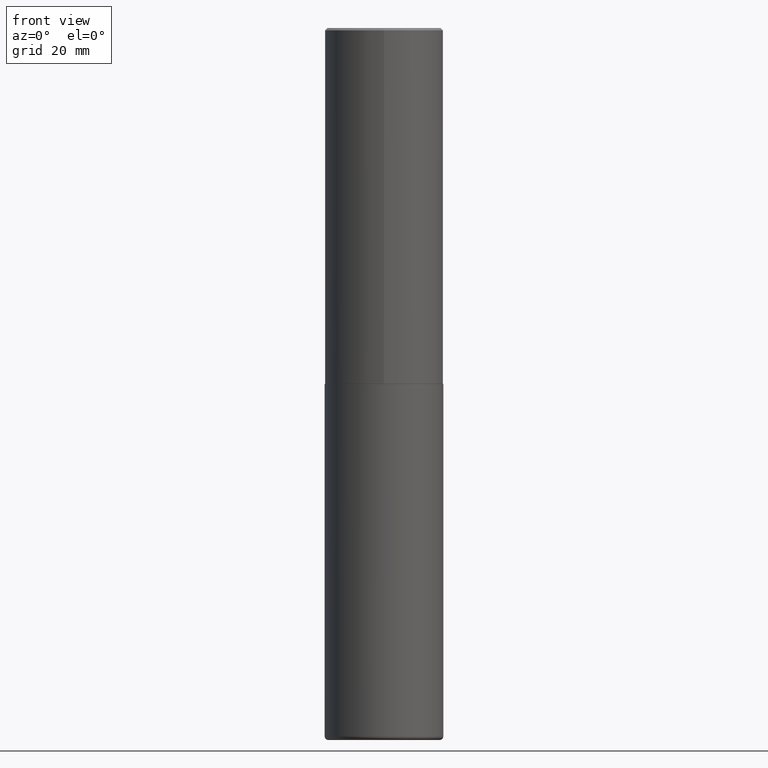
[diagram: clean part render]
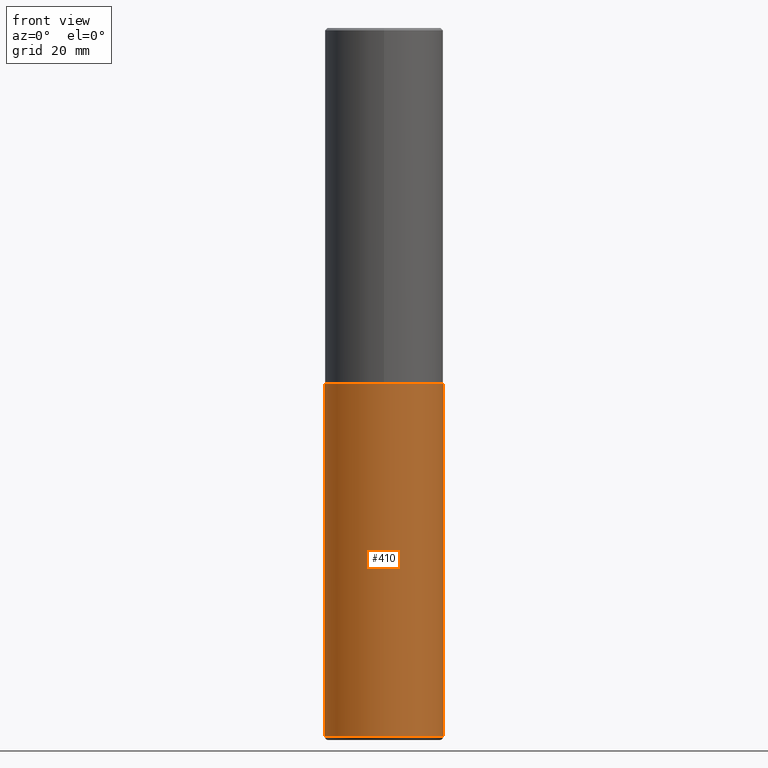
[diagram: same view with one face highlighted and labeled with its STEP entity id]
A machine part, front view. The second image highlights one B-rep face of the part: STEP entity #410.
In plain terms, the highlighted cylindrical surface (partial cylindrical patch) has radius 12.7 mm, axis along (-0, 0, 1).
Its self-contained STEP definition (entity closure, byte-faithful):
#10 = VERTEX_POINT ( 'NONE', #353 ) ;
#11 = CYLINDRICAL_SURFACE ( 'NONE', #97, 0.5000000000000000000 ) ;
#31 = LINE ( 'NONE', #360, #286 ) ;
#72 = DIRECTION ( 'NONE',  ( 1.000000000000000000, -6.982962677686266711E-15, 0.000000000000000000 ) ) ;
#77 = FACE_OUTER_BOUND ( 'NONE', #145, .T. ) ;
#84 = CARTESIAN_POINT ( 'NONE',  ( -0.5000000000000003331, -1.729142991409307210E-14, -5.969999999999999751 ) ) ;
#97 = AXIS2_PLACEMENT_3D ( 'NONE', #207, #170, #270 ) ;
#107 = VERTEX_POINT ( 'NONE', #401 ) ;
#108 = EDGE_CURVE ( 'NONE', #110, #107, #374, .T. ) ;
#110 = VERTEX_POINT ( 'NONE', #84 ) ;
#112 = AXIS2_PLACEMENT_3D ( 'NONE', #362, #366, #72 ) ;
#115 = CARTESIAN_POINT ( 'NONE',  ( -0.5000000000000000000, 3.552713678800500929E-15, -2.459467545127452891E-29 ) ) ;
#133 = DIRECTION ( 'NONE',  ( -2.445468806185136877E-29, 3.491481338843145188E-15, 1.000000000000000000 ) ) ;
#135 = AXIS2_PLACEMENT_3D ( 'NONE', #164, #230, #388 ) ;
#145 = EDGE_LOOP ( 'NONE', ( #280, #275, #287, #176 ) ) ;
#164 = CARTESIAN_POINT ( 'NONE',  ( 1.459944877292526494E-28, -2.084414359289357934E-14, -5.969999999999999751 ) ) ;
#170 = DIRECTION ( 'NONE',  ( -2.445468806185136597E-29, 3.491481338843145583E-15, 1.000000000000000000 ) ) ;
#176 = ORIENTED_EDGE ( 'NONE', *, *, #392, .F. ) ;
#189 = EDGE_CURVE ( 'NONE', #10, #364, #31, .T. ) ;
#207 = CARTESIAN_POINT ( 'NONE',  ( 0.000000000000000000, 0.000000000000000000, 0.000000000000000000 ) ) ;
#230 = DIRECTION ( 'NONE',  ( -2.445468806185136597E-29, 3.491481338843145583E-15, 1.000000000000000000 ) ) ;
#247 = DIRECTION ( 'NONE',  ( -2.445468806185136877E-29, 3.491481338843145188E-15, 1.000000000000000000 ) ) ;
#252 = EDGE_CURVE ( 'NONE', #110, #10, #279, .T. ) ;
#270 = DIRECTION ( 'NONE',  ( 1.000000000000000000, -6.982962677686266711E-15, 4.876176775795935793E-29 ) ) ;
#275 = ORIENTED_EDGE ( 'NONE', *, *, #252, .T. ) ;
#279 = CIRCLE ( 'NONE', #135, 0.4999999999999999445 ) ;
#280 = ORIENTED_EDGE ( 'NONE', *, *, #108, .F. ) ;
#286 = VECTOR ( 'NONE', #133, 39.37007874015748143 ) ;
#287 = ORIENTED_EDGE ( 'NONE', *, *, #189, .T. ) ;
#353 = CARTESIAN_POINT ( 'NONE',  ( 0.5000000000000003331, -2.433562493173670954E-14, -5.969999999999999751 ) ) ;
#360 = CARTESIAN_POINT ( 'NONE',  ( 0.5000000000000000000, -3.491481338843133355E-15, 2.438088387897967896E-29 ) ) ;
#362 = CARTESIAN_POINT ( 'NONE',  ( 7.336406418555409790E-29, -1.047444401652943635E-14, -3.000000000000000444 ) ) ;
#364 = VERTEX_POINT ( 'NONE', #413 ) ;
#365 = VECTOR ( 'NONE', #247, 39.37007874015748143 ) ;
#366 = DIRECTION ( 'NONE',  ( -2.445468806185136597E-29, 3.491481338843145583E-15, 1.000000000000000000 ) ) ;
#374 = LINE ( 'NONE', #115, #365 ) ;
#388 = DIRECTION ( 'NONE',  ( 1.000000000000000000, -6.982962677686263555E-15, 0.000000000000000000 ) ) ;
#391 = CIRCLE ( 'NONE', #112, 0.5000000000000000000 ) ;
#392 = EDGE_CURVE ( 'NONE', #107, #364, #391, .T. ) ;
#401 = CARTESIAN_POINT ( 'NONE',  ( -0.5000000000000000000, -1.210658012591100613E-14, -3.000000000000000444 ) ) ;
#410 = ADVANCED_FACE ( 'NONE', ( #77 ), #11, .T. ) ;
#413 = CARTESIAN_POINT ( 'NONE',  ( 0.5000000000000000000, -1.396592535537257129E-14, -3.000000000000000444 ) ) ;